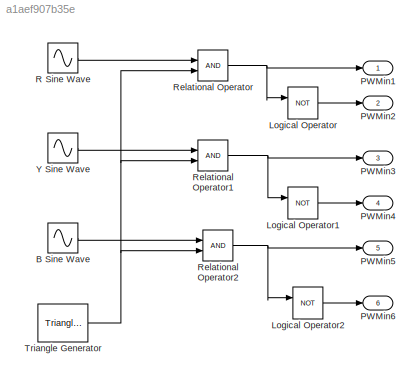
MODEL slx_a1aef907b35e
KIND model
CONFIG AbsTol = auto
CONFIG EnableMultiTasking = off
CONFIG FixedStep = auto
CONFIG MaxStep = auto
CONFIG MinStep = auto
CONFIG RelTol = 1e-3
CONFIG SampleTimeConstraint = Unconstrained
CONFIG SolverName = VariableStepAuto
CONFIG StartTime = 0.0
CONFIG StopTime = 10.0
BLOCK [Sin] B Sine Wave
  Amplitude = 0.8
  Frequency = 2*pi*50
  Phase = -2*pi*50/3
  SampleTime = 0
BLOCK [Logic] Logical Operator
  AllPortsSameDT = off
  Operator = NOT
  OutDataTypeStr = boolean
BLOCK [Logic] Logical Operator1
  AllPortsSameDT = off
  Operator = NOT
  OutDataTypeStr = boolean
BLOCK [Logic] Logical Operator2
  AllPortsSameDT = off
  Operator = NOT
  OutDataTypeStr = boolean
BLOCK [Outport] PWMin1
BLOCK [Outport] PWMin2
  Port = 2
BLOCK [Outport] PWMin3
  Port = 3
BLOCK [Outport] PWMin4
  Port = 4
BLOCK [Outport] PWMin5
  Port = 5
BLOCK [Outport] PWMin6
  Port = 6
BLOCK [Sin] R Sine Wave
  Amplitude = 0.8
  Frequency = 2*pi*50
  SampleTime = 0
BLOCK [RelationalOperator] Relational Operator
  InputSameDT = off
  OutDataTypeStr = boolean
  RndMeth = Simplest
BLOCK [RelationalOperator] Relational Operator1
  InputSameDT = off
  OutDataTypeStr = boolean
  RndMeth = Simplest
BLOCK [RelationalOperator] Relational Operator2
  InputSameDT = off
  OutDataTypeStr = boolean
  RndMeth = Simplest
BLOCK [Reference] Triangle Generator  REF=spsTriangleGeneratorLib/Triangle
Generator
  LibrarySourceBlock = sps_lib/Sources/Signal Generator Sources/Triangle\nGenerator
  SourceBlock = spsTriangleGeneratorLib/Triangle\nGenerator
  SourceType = Triangle Generator
BLOCK [Sin] Y Sine Wave
  Amplitude = 0.8
  Frequency = 2*pi*50
  Phase = 2*pi*50/3
  SampleTime = 0
LINE B Sine Wave:1 -> Relational Operator2:1
LINE Logical Operator1:1 -> PWMin4:1
LINE Logical Operator2:1 -> PWMin6:1
LINE Logical Operator:1 -> PWMin2:1
LINE R Sine Wave:1 -> Relational Operator:1
NET Relational Operator1:1 -> Logical Operator1:1, PWMin3:1
NET Relational Operator2:1 -> Logical Operator2:1, PWMin5:1
NET Relational Operator:1 -> Logical Operator:1, PWMin1:1
NET Triangle Generator:1 -> Relational Operator1:2, Relational Operator2:2, Relational Operator:2
LINE Y Sine Wave:1 -> Relational Operator1:1
note: NET lines group one-source signal fan-out (src -> all destinations, sorted); 1:1 wires keep LINE
